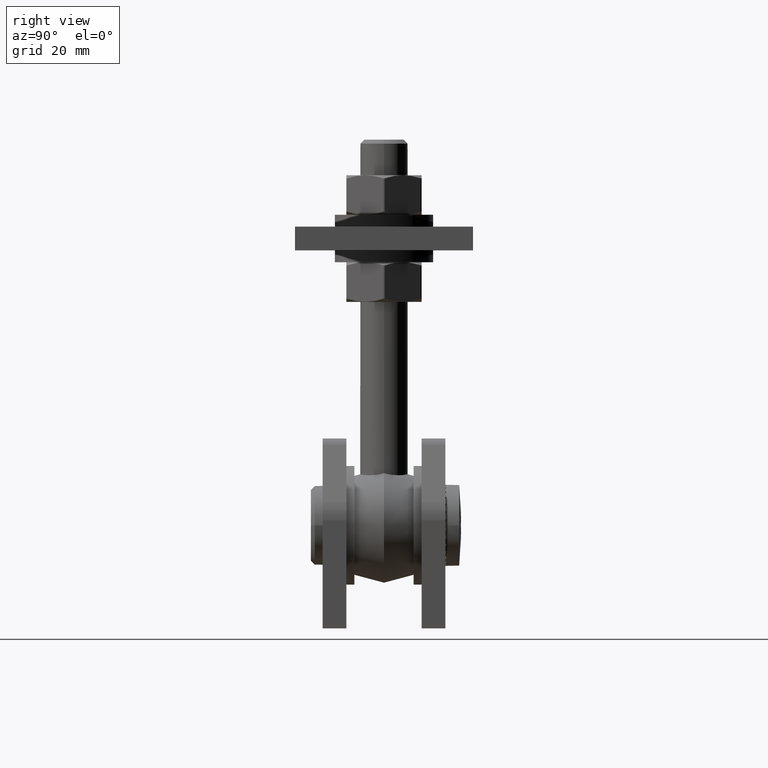
[diagram: clean part render]
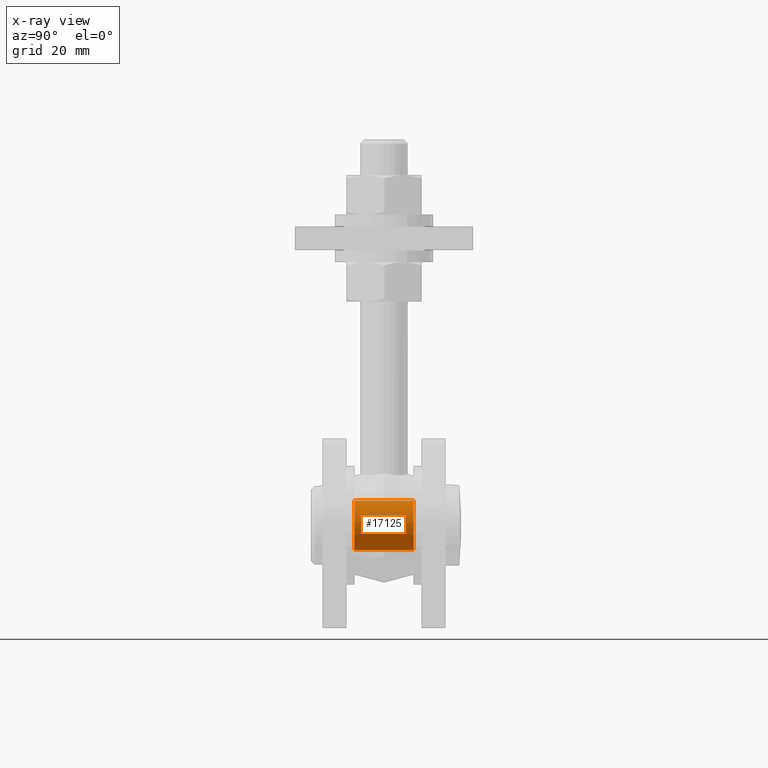
[diagram: x-ray — body ghosted, one internal face saturated and labeled with its STEP entity id]
A machine part, right view, then the same camera in x-ray: the body is ghosted and one INTERNAL B-rep face — a face not visible from any outside direction — is saturated and labeled: STEP entity #17125.
In plain terms, the highlighted cylindrical surface (bore or boss wall) has radius 6.25 mm, axis along (-0, 1, 0).
Its self-contained STEP definition (entity closure, byte-faithful):
#1373 = FACE_OUTER_BOUND ( 'NONE', #21029, .T. ) ;
#2370 = CARTESIAN_POINT ( 'NONE',  ( 0.000000000000000000, -7.499999999999998224, -1.469576158976824144E-15 ) ) ;
#2698 = DIRECTION ( 'NONE',  ( -1.643764948137485326E-48, 1.000000000000000000, 4.026062964574373835E-64 ) ) ;
#2979 = CYLINDRICAL_SURFACE ( 'NONE', #5572, 6.250000000000000000 ) ;
#4992 = EDGE_LOOP ( 'NONE', ( #10384 ) ) ;
#5572 = AXIS2_PLACEMENT_3D ( 'NONE', #8387, #15160, #10103 ) ;
#6185 = CARTESIAN_POINT ( 'NONE',  ( 0.000000000000000000, 7.500000000000001776, -1.469576158976824144E-15 ) ) ;
#8387 = CARTESIAN_POINT ( 'NONE',  ( 0.000000000000000000, 7.500000000000000000, -1.469576158976824144E-15 ) ) ;
#8442 = VERTEX_POINT ( 'NONE', #18646 ) ;
#8681 = EDGE_CURVE ( 'NONE', #15655, #15655, #18276, .T. ) ;
#10103 = DIRECTION ( 'NONE',  ( 0.000000000000000000, 0.000000000000000000, 1.000000000000000000 ) ) ;
#10384 = ORIENTED_EDGE ( 'NONE', *, *, #21874, .F. ) ;
#12007 = FACE_OUTER_BOUND ( 'NONE', #4992, .T. ) ;
#12755 = AXIS2_PLACEMENT_3D ( 'NONE', #2370, #19277, #14251 ) ;
#13491 = CARTESIAN_POINT ( 'NONE',  ( 0.000000000000000000, 7.500000000000001776, 6.249999999999998224 ) ) ;
#14251 = DIRECTION ( 'NONE',  ( 0.000000000000000000, 0.000000000000000000, 1.000000000000000000 ) ) ;
#14687 = AXIS2_PLACEMENT_3D ( 'NONE', #6185, #2698, #17965 ) ;
#15160 = DIRECTION ( 'NONE',  ( -1.643764948137485326E-48, 1.000000000000000000, 4.026062964574373835E-64 ) ) ;
#15655 = VERTEX_POINT ( 'NONE', #13491 ) ;
#15906 = ORIENTED_EDGE ( 'NONE', *, *, #8681, .T. ) ;
#17125 = ADVANCED_FACE ( 'NONE', ( #12007, #1373 ), #2979, .F. ) ;
#17965 = DIRECTION ( 'NONE',  ( 0.000000000000000000, 0.000000000000000000, 1.000000000000000000 ) ) ;
#18276 = CIRCLE ( 'NONE', #14687, 6.250000000000000000 ) ;
#18646 = CARTESIAN_POINT ( 'NONE',  ( 0.000000000000000000, -7.499999999999998224, 6.249999999999998224 ) ) ;
#19277 = DIRECTION ( 'NONE',  ( -1.643764948137485326E-48, 1.000000000000000000, 4.026062964574373835E-64 ) ) ;
#20850 = CIRCLE ( 'NONE', #12755, 6.250000000000000000 ) ;
#21029 = EDGE_LOOP ( 'NONE', ( #15906 ) ) ;
#21874 = EDGE_CURVE ( 'NONE', #8442, #8442, #20850, .T. ) ;